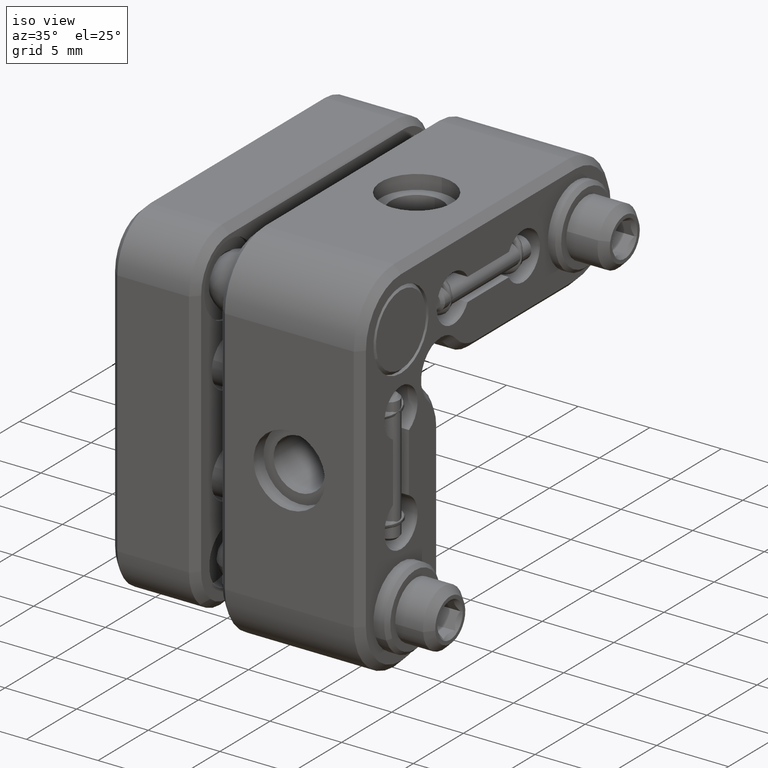
[diagram: clean part render]
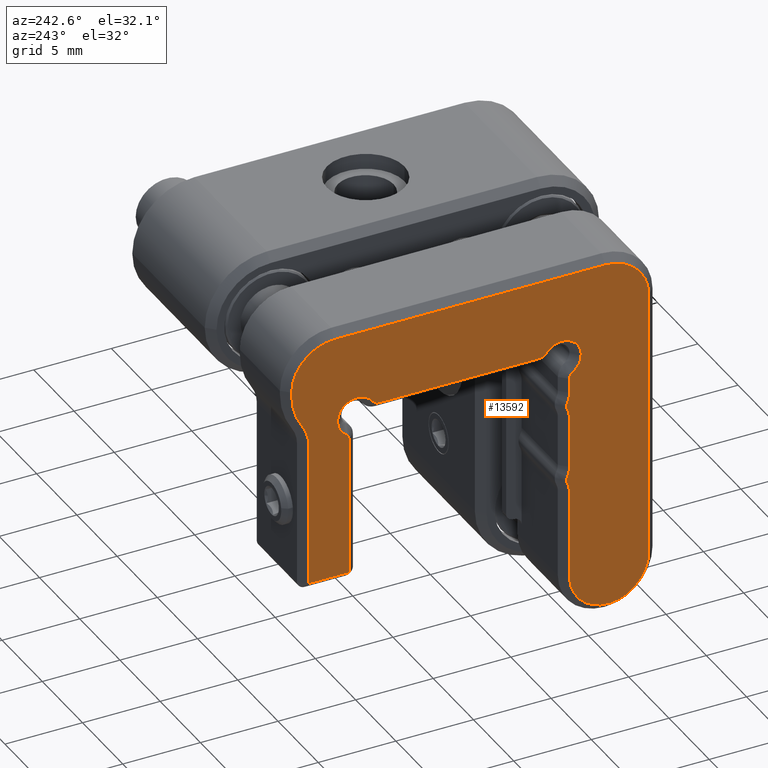
[diagram: tour spotlight — one face highlighted and labeled with its STEP entity id]
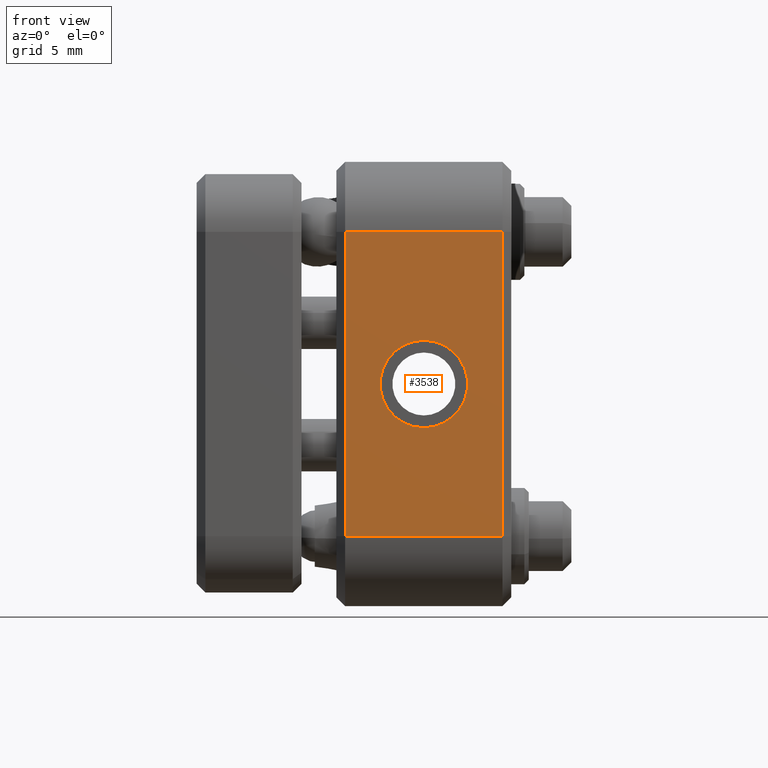
[diagram: tour spotlight — one face highlighted and labeled with its STEP entity id]
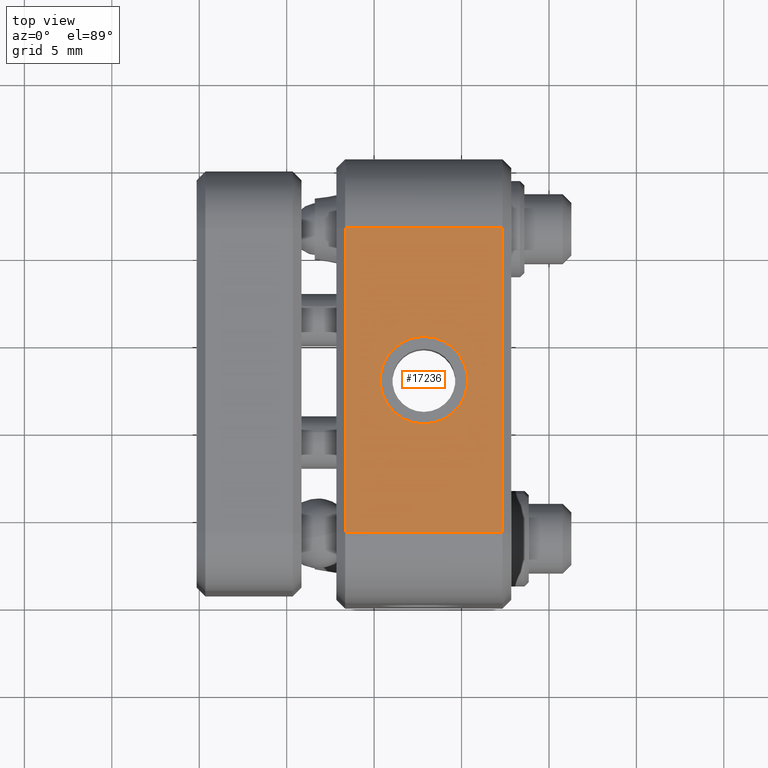
[diagram: tour spotlight — one face highlighted and labeled with its STEP entity id]
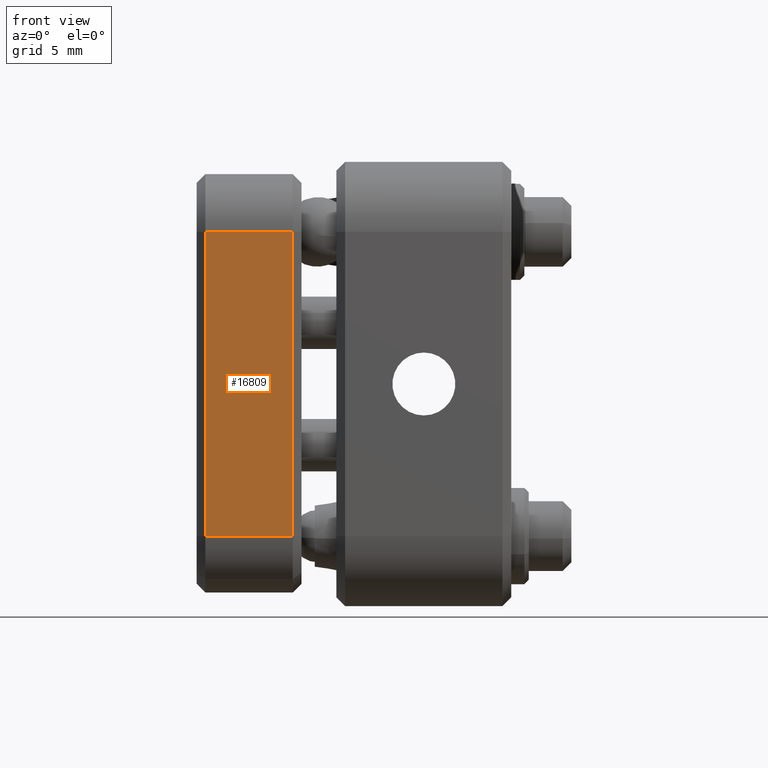
[diagram: tour spotlight — one face highlighted and labeled with its STEP entity id]
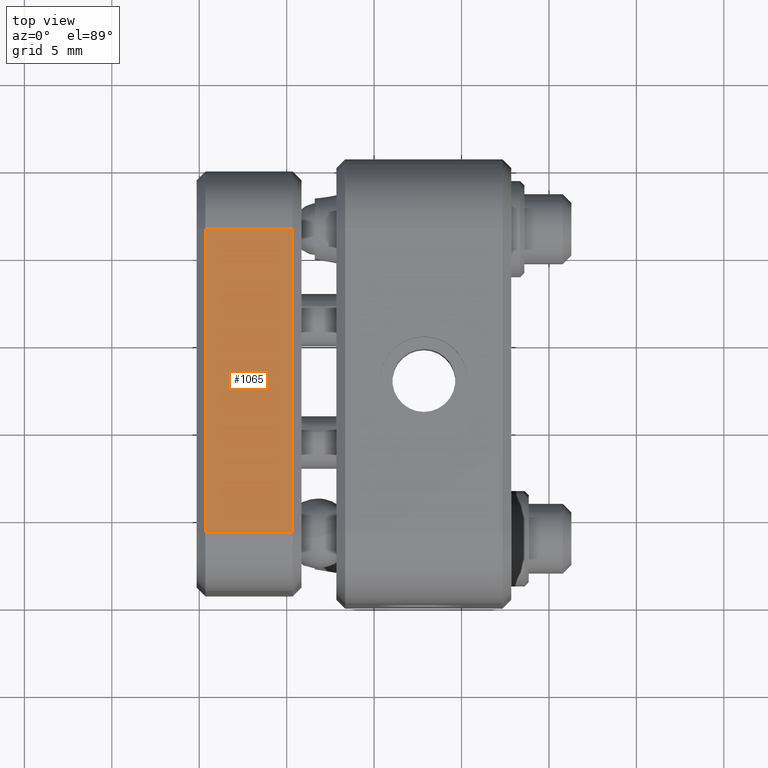
[diagram: tour spotlight — one face highlighted and labeled with its STEP entity id]
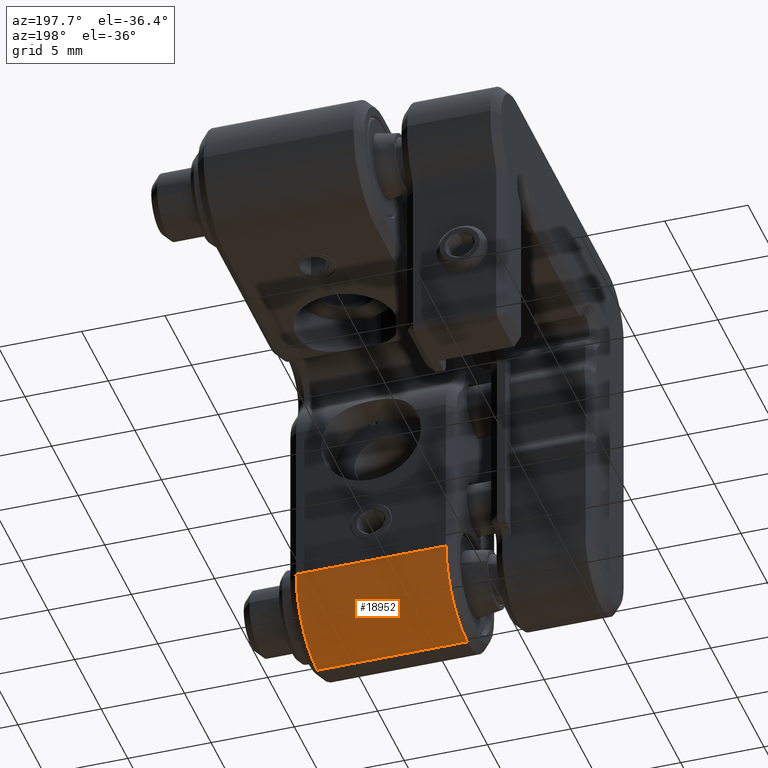
[diagram: tour spotlight — one face highlighted and labeled with its STEP entity id]
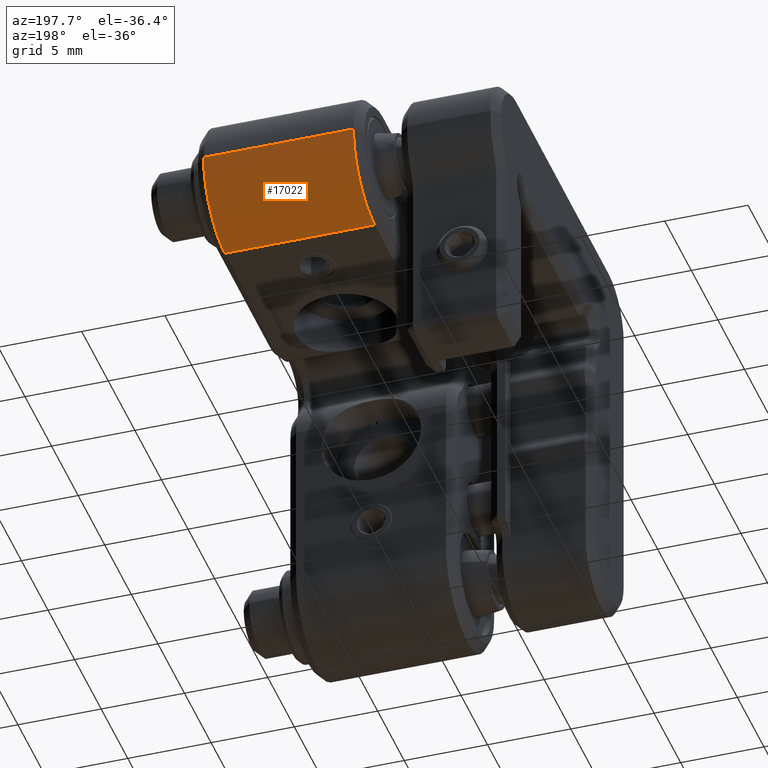
[diagram: tour spotlight — one face highlighted and labeled with its STEP entity id]
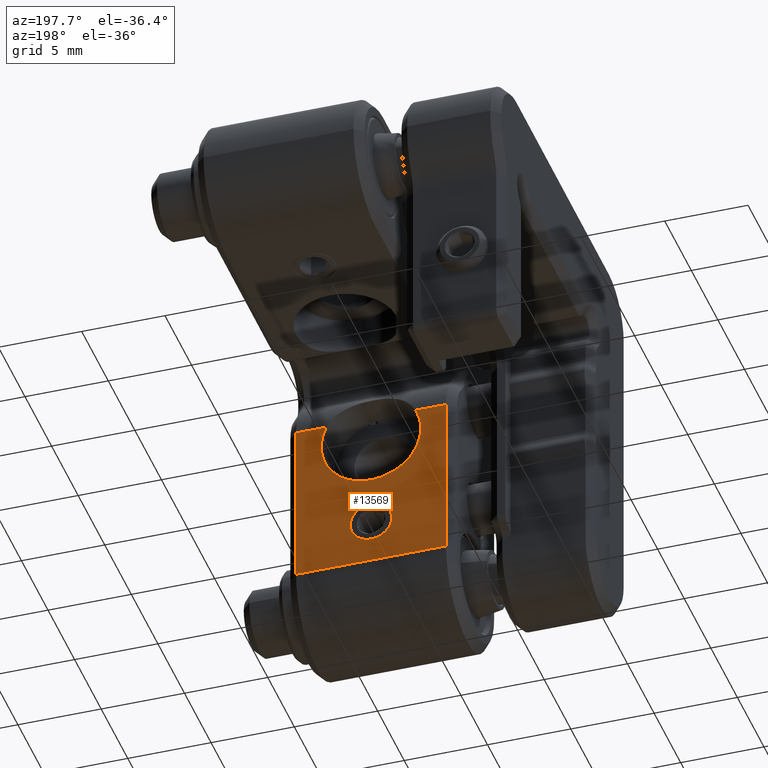
[diagram: tour spotlight — one face highlighted and labeled with its STEP entity id]
A machine part: a face-by-face anatomy tour. The part has 368 B-rep faces; the first image is the clean iso view, then the 8 largest visible faces are spotlighted one at a time (largest first), each with its STEP entity span.

Face 1 — auxiliary view, entity #13592. In plain terms, the highlighted planar face has unit normal (1, 0, 0).
Definition (entity closure, byte-faithful):
#180 = DIRECTION ( 'NONE',  ( 1.000000000000000000, 0.0000000000000000000, 0.0000000000000000000 ) ) ;
#351 = DIRECTION ( 'NONE',  ( 0.0000000000000000000, -2.891205793294678326E-16, 1.000000000000000000 ) ) ;
#529 = VECTOR ( 'NONE', #6184, 1000.000000000000000 ) ;
#653 = LINE ( 'NONE', #8641, #21054 ) ;
#727 = CARTESIAN_POINT ( 'NONE',  ( 9.847411328740415470, 5.800000000000007816, -6.836140661634504845 ) ) ;
#1046 = CARTESIAN_POINT ( 'NONE',  ( 9.847411328740415470, 24.19999999999999929, -2.852119405403254593 ) ) ;
#1091 = VECTOR ( 'NONE', #12409, 1000.000000000000000 ) ;
#1153 = VECTOR ( 'NONE', #22254, 1000.000000000000000 ) ;
#1196 = CARTESIAN_POINT ( 'NONE',  ( 9.847411328740415470, 25.60000000000000853, -6.470129908428365439 ) ) ;
#1208 = CARTESIAN_POINT ( 'NONE',  ( 9.847411328740415470, 21.00000000000000355, -6.836140661634501292 ) ) ;
#1295 = CARTESIAN_POINT ( 'NONE',  ( 9.847411328740415470, 12.70000000000000639, -4.899999999999984368 ) ) ;
#1422 = AXIS2_PLACEMENT_3D ( 'NONE', #1196, #4023, #9121 ) ;
#1427 = VERTEX_POINT ( 'NONE', #14886 ) ;
#1625 = VERTEX_POINT ( 'NONE', #13255 ) ;
#1644 = VECTOR ( 'NONE', #4873, 1000.000000000000000 ) ;
#1671 = DIRECTION ( 'NONE',  ( 0.0000000000000000000, -2.891205793294678326E-16, 1.000000000000000000 ) ) ;
#1681 = VERTEX_POINT ( 'NONE', #20460 ) ;
#1809 = AXIS2_PLACEMENT_3D ( 'NONE', #21715, #9266, #351 ) ;
#1902 = EDGE_LOOP ( 'NONE', ( #12749, #7434, #20106, #4375, #19974, #8867, #7973, #2912, #9295, #15894, #19565, #7230, #7877, #9109, #9439, #10553, #2989, #18371, #14091, #6196, #8314, #9900, #18697, #16679, #17663, #4188, #13378, #14785 ) ) ;
#1936 = EDGE_CURVE ( 'NONE', #21542, #21470, #22886, .T. ) ;
#2209 = VERTEX_POINT ( 'NONE', #9323 ) ;
#2364 = VERTEX_POINT ( 'NONE', #8139 ) ;
#2388 = DIRECTION ( 'NONE',  ( 1.000000000000000000, 0.0000000000000000000, 0.0000000000000000000 ) ) ;
#2446 = VERTEX_POINT ( 'NONE', #8679 ) ;
#2576 = EDGE_CURVE ( 'NONE', #10799, #14043, #20573, .T. ) ;
#2836 = CARTESIAN_POINT ( 'NONE',  ( 9.847411328740415470, 6.299999999999998046, -12.76328516550604242 ) ) ;
#2912 = ORIENTED_EDGE ( 'NONE', *, *, #13220, .F. ) ;
#2983 = VERTEX_POINT ( 'NONE', #10305 ) ;
#2989 = ORIENTED_EDGE ( 'NONE', *, *, #20579, .F. ) ;
#3042 = CARTESIAN_POINT ( 'NONE',  ( 9.847411328740415470, 23.10000000000000142, -15.79999999999999183 ) ) ;
#3185 = DIRECTION ( 'NONE',  ( 0.0000000000000000000, -1.387778780781475652E-14, 1.000000000000000000 ) ) ;
#3266 = EDGE_CURVE ( 'NONE', #19449, #10123, #12544, .T. ) ;
#3393 = CARTESIAN_POINT ( 'NONE',  ( 9.847411328740415470, 4.000000000000007105, 0.1999999999999918510 ) ) ;
#3449 = VECTOR ( 'NONE', #22262, 1000.000000000000000 ) ;
#3509 = CARTESIAN_POINT ( 'NONE',  ( 9.847411328740415470, 7.800000000000007816, -9.506844742922329061 ) ) ;
#3606 = CARTESIAN_POINT ( 'NONE',  ( 9.847411328740415470, 6.000000000000013323, -13.63506495421418485 ) ) ;
#3770 = CARTESIAN_POINT ( 'NONE',  ( 9.847411328740415470, 23.09999999999999432, -6.470129908428365439 ) ) ;
#3908 = DIRECTION ( 'NONE',  ( -1.000000000000000000, -0.0000000000000000000, -0.0000000000000000000 ) ) ;
#3931 = CARTESIAN_POINT ( 'NONE',  ( 9.847411328740415470, 1.200000000000022160, -20.00000000000000355 ) ) ;
#3999 = EDGE_CURVE ( 'NONE', #10123, #1625, #13560, .T. ) ;
#4000 = CIRCLE ( 'NONE', #19605, 3.999999999999988898 ) ;
#4023 = DIRECTION ( 'NONE',  ( -1.000000000000000000, -0.0000000000000000000, -0.0000000000000000000 ) ) ;
#4173 = AXIS2_PLACEMENT_3D ( 'NONE', #5706, #3908, #5404 ) ;
#4188 = ORIENTED_EDGE ( 'NONE', *, *, #5998, .F. ) ;
#4197 = EDGE_CURVE ( 'NONE', #12389, #2364, #13843, .T. ) ;
#4198 = AXIS2_PLACEMENT_3D ( 'NONE', #12966, #5921, #21598 ) ;
#4375 = ORIENTED_EDGE ( 'NONE', *, *, #2576, .F. ) ;
#4573 = CIRCLE ( 'NONE', #14760, 0.4999999999999891753 ) ;
#4578 = DIRECTION ( 'NONE',  ( 0.0000000000000000000, 0.0000000000000000000, 1.000000000000000000 ) ) ;
#4710 = VECTOR ( 'NONE', #12197, 1000.000000000000000 ) ;
#4749 = VERTEX_POINT ( 'NONE', #11320 ) ;
#4811 = EDGE_CURVE ( 'NONE', #2364, #18503, #5303, .T. ) ;
#4865 = CARTESIAN_POINT ( 'NONE',  ( 9.847411328740415470, 6.299999999999997158, -11.30000000000000071 ) ) ;
#4873 = DIRECTION ( 'NONE',  ( 0.0000000000000000000, 1.000000000000000000, 4.205390244792259832E-16 ) ) ;
#5109 = CIRCLE ( 'NONE', #17406, 2.799999999999988276 ) ;
#5205 = CARTESIAN_POINT ( 'NONE',  ( 9.847411328740415470, 1.200000000000018829, -2.599999999999996536 ) ) ;
#5275 = DIRECTION ( 'NONE',  ( 0.0000000000000000000, 0.0000000000000000000, 1.000000000000000000 ) ) ;
#5303 = CIRCLE ( 'NONE', #20083, 1.500000000000009992 ) ;
#5334 = DIRECTION ( 'NONE',  ( 0.0000000000000000000, 2.891205793294678326E-16, -1.000000000000000000 ) ) ;
#5404 = DIRECTION ( 'NONE',  ( 0.0000000000000000000, -5.782411586589318196E-16, 1.000000000000000000 ) ) ;
#5706 = CARTESIAN_POINT ( 'NONE',  ( 9.847411328740415470, 7.800000000000009592, -14.50684474292232906 ) ) ;
#5843 = CARTESIAN_POINT ( 'NONE',  ( 9.847411328740415470, 20.50000000000001776, -6.836140661634501292 ) ) ;
#5921 = DIRECTION ( 'NONE',  ( 1.000000000000000000, 0.0000000000000000000, 0.0000000000000000000 ) ) ;
#5970 = VERTEX_POINT ( 'NONE', #9798 ) ;
#5998 = EDGE_CURVE ( 'NONE', #2209, #2446, #12394, .T. ) ;
#6111 = VERTEX_POINT ( 'NONE', #18899 ) ;
#6178 = AXIS2_PLACEMENT_3D ( 'NONE', #10374, #8445, #3185 ) ;
#6184 = DIRECTION ( 'NONE',  ( 0.0000000000000000000, 2.891205793294678326E-16, -1.000000000000000000 ) ) ;
#6196 = ORIENTED_EDGE ( 'NONE', *, *, #7202, .F. ) ;
#6428 = AXIS2_PLACEMENT_3D ( 'NONE', #1208, #20625, #4578 ) ;
#6541 = CARTESIAN_POINT ( 'NONE',  ( 9.847411328740415470, 3.800000000000010036, -20.22360679774997649 ) ) ;
#6687 = VERTEX_POINT ( 'NONE', #11974 ) ;
#7202 = EDGE_CURVE ( 'NONE', #6687, #10165, #14513, .T. ) ;
#7205 = VERTEX_POINT ( 'NONE', #11892 ) ;
#7209 = AXIS2_PLACEMENT_3D ( 'NONE', #16060, #19550, #9054 ) ;
#7230 = ORIENTED_EDGE ( 'NONE', *, *, #19733, .F. ) ;
#7292 = AXIS2_PLACEMENT_3D ( 'NONE', #6541, #13304, #15316 ) ;
#7434 = ORIENTED_EDGE ( 'NONE', *, *, #20256, .F. ) ;
#7531 = CARTESIAN_POINT ( 'NONE',  ( 9.847411328740415470, 6.450000000000001066, -8.853009901391217795 ) ) ;
#7567 = CIRCLE ( 'NONE', #16337, 1.250000000000010658 ) ;
#7591 = CIRCLE ( 'NONE', #10316, 0.4999999999999900080 ) ;
#7728 = DIRECTION ( 'NONE',  ( 0.0000000000000000000, 0.0000000000000000000, 1.000000000000000000 ) ) ;
#7826 = CARTESIAN_POINT ( 'NONE',  ( 9.847411328740415470, 2.133333333333332416, -22.08699677899977942 ) ) ;
#7877 = ORIENTED_EDGE ( 'NONE', *, *, #18575, .F. ) ;
#7973 = ORIENTED_EDGE ( 'NONE', *, *, #3266, .F. ) ;
#7978 = DIRECTION ( 'NONE',  ( 1.000000000000000000, 0.0000000000000000000, 0.0000000000000000000 ) ) ;
#8042 = CIRCLE ( 'NONE', #1422, 2.500000000000011102 ) ;
#8082 = DIRECTION ( 'NONE',  ( -1.000000000000000000, -0.0000000000000000000, -0.0000000000000000000 ) ) ;
#8129 = EDGE_CURVE ( 'NONE', #7205, #2983, #19624, .T. ) ;
#8133 = CARTESIAN_POINT ( 'NONE',  ( 9.847411328740415470, 8.236140661634513194, -4.899999999999987921 ) ) ;
#8139 = CARTESIAN_POINT ( 'NONE',  ( 9.847411328740415470, 6.299999999999996270, -9.506844742922329061 ) ) ;
#8314 = ORIENTED_EDGE ( 'NONE', *, *, #19658, .F. ) ;
#8445 = DIRECTION ( 'NONE',  ( 1.000000000000000000, 0.0000000000000000000, 0.0000000000000000000 ) ) ;
#8641 = CARTESIAN_POINT ( 'NONE',  ( 9.847411328740415470, 12.70000000000001172, -15.79999999999998828 ) ) ;
#8677 = VERTEX_POINT ( 'NONE', #20665 ) ;
#8679 = CARTESIAN_POINT ( 'NONE',  ( 9.847411328740415470, 6.299999999999996270, -7.763285165506041530 ) ) ;
#8693 = DIRECTION ( 'NONE',  ( 0.0000000000000000000, 1.239088197126295994E-15, 1.000000000000000000 ) ) ;
#8781 = DIRECTION ( 'NONE',  ( 1.000000000000000000, 0.0000000000000000000, 0.0000000000000000000 ) ) ;
#8867 = ORIENTED_EDGE ( 'NONE', *, *, #3999, .F. ) ;
#8986 = DIRECTION ( 'NONE',  ( 0.0000000000000000000, 0.0000000000000000000, 1.000000000000000000 ) ) ;
#9054 = DIRECTION ( 'NONE',  ( 0.0000000000000000000, 6.938893903907367217E-15, 1.000000000000000000 ) ) ;
#9109 = ORIENTED_EDGE ( 'NONE', *, *, #16333, .F. ) ;
#9112 = FACE_OUTER_BOUND ( 'NONE', #1902, .T. ) ;
#9120 = LINE ( 'NONE', #10670, #4710 ) ;
#9121 = DIRECTION ( 'NONE',  ( 0.0000000000000000000, 0.0000000000000000000, 1.000000000000000000 ) ) ;
#9266 = DIRECTION ( 'NONE',  ( 1.000000000000000000, 0.0000000000000000000, 0.0000000000000000000 ) ) ;
#9295 = ORIENTED_EDGE ( 'NONE', *, *, #1936, .F. ) ;
#9323 = CARTESIAN_POINT ( 'NONE',  ( 9.847411328740415470, 6.450000000000000178, -8.417120007037155460 ) ) ;
#9439 = ORIENTED_EDGE ( 'NONE', *, *, #16003, .F. ) ;
#9444 = CARTESIAN_POINT ( 'NONE',  ( 9.847411328740415470, 8.236140661634513194, -4.399999999999997691 ) ) ;
#9759 = DIRECTION ( 'NONE',  ( 0.0000000000000000000, 0.0000000000000000000, 1.000000000000000000 ) ) ;
#9783 = CIRCLE ( 'NONE', #7209, 0.4999999999999900080 ) ;
#9798 = CARTESIAN_POINT ( 'NONE',  ( 9.847411328740415470, 20.50000000000001066, -15.79999999999998472 ) ) ;
#9881 = CIRCLE ( 'NONE', #17018, 1.500000000000009992 ) ;
#9887 = CARTESIAN_POINT ( 'NONE',  ( 9.847411328740415470, 6.299999999999998934, -14.50684474292232906 ) ) ;
#9900 = ORIENTED_EDGE ( 'NONE', *, *, #15102, .F. ) ;
#9980 = CARTESIAN_POINT ( 'NONE',  ( 9.847411328740415470, 23.09999999999999787, -11.29999999999999361 ) ) ;
#10123 = VERTEX_POINT ( 'NONE', #7826 ) ;
#10165 = VERTEX_POINT ( 'NONE', #13065 ) ;
#10305 = CARTESIAN_POINT ( 'NONE',  ( 9.847411328740415470, 7.825814758310378316, -4.685714285714278837 ) ) ;
#10316 = AXIS2_PLACEMENT_3D ( 'NONE', #3606, #8781, #12391 ) ;
#10374 = CARTESIAN_POINT ( 'NONE',  ( 9.847411328740415470, 18.56385933836549995, -4.399999999999994138 ) ) ;
#10437 = VERTEX_POINT ( 'NONE', #8133 ) ;
#10444 = VERTEX_POINT ( 'NONE', #3042 ) ;
#10553 = ORIENTED_EDGE ( 'NONE', *, *, #21501, .F. ) ;
#10670 = CARTESIAN_POINT ( 'NONE',  ( 9.847411328740415470, 6.299999999999997158, -11.30000000000000071 ) ) ;
#10769 = DIRECTION ( 'NONE',  ( 1.000000000000000000, 0.0000000000000000000, 0.0000000000000000000 ) ) ;
#10799 = VERTEX_POINT ( 'NONE', #9887 ) ;
#10987 = EDGE_CURVE ( 'NONE', #8677, #21542, #17934, .T. ) ;
#11277 = CIRCLE ( 'NONE', #6428, 0.4999999999999891753 ) ;
#11320 = CARTESIAN_POINT ( 'NONE',  ( 9.847411328740415470, 23.52307692307692477, -5.078587407264856246 ) ) ;
#11547 = DIRECTION ( 'NONE',  ( 0.0000000000000000000, 0.0000000000000000000, 1.000000000000000000 ) ) ;
#11629 = EDGE_CURVE ( 'NONE', #1427, #8677, #5109, .T. ) ;
#11892 = CARTESIAN_POINT ( 'NONE',  ( 9.847411328740415470, 6.085714285714286298, -6.425814758310368191 ) ) ;
#11974 = CARTESIAN_POINT ( 'NONE',  ( 9.847411328740415470, 18.56385933836549995, -4.899999999999980815 ) ) ;
#12068 = CARTESIAN_POINT ( 'NONE',  ( 9.847411328740415470, 6.800000000000006928, -5.399999999999998579 ) ) ;
#12197 = DIRECTION ( 'NONE',  ( 0.0000000000000000000, -3.375765423455797739E-16, 1.000000000000000000 ) ) ;
#12389 = VERTEX_POINT ( 'NONE', #2836 ) ;
#12391 = DIRECTION ( 'NONE',  ( 0.0000000000000000000, -5.204170427930525413E-15, 1.000000000000000000 ) ) ;
#12394 = CIRCLE ( 'NONE', #16322, 1.500000000000011768 ) ;
#12409 = DIRECTION ( 'NONE',  ( 0.0000000000000000000, -1.000000000000000000, -1.445602896647339163E-16 ) ) ;
#12544 = CIRCLE ( 'NONE', #4198, 2.799999999999990052 ) ;
#12604 = VECTOR ( 'NONE', #5334, 1000.000000000000000 ) ;
#12749 = ORIENTED_EDGE ( 'NONE', *, *, #4197, .F. ) ;
#12966 = CARTESIAN_POINT ( 'NONE',  ( 9.847411328740415470, 4.000000000000012434, -19.99999999999999645 ) ) ;
#13065 = CARTESIAN_POINT ( 'NONE',  ( 9.847411328740415470, 18.97418524168963572, -4.685714285714272620 ) ) ;
#13220 = EDGE_CURVE ( 'NONE', #21470, #19449, #17357, .T. ) ;
#13255 = CARTESIAN_POINT ( 'NONE',  ( 9.847411328740415470, 6.299999999999999822, -20.22360679774997649 ) ) ;
#13280 = CARTESIAN_POINT ( 'NONE',  ( 9.847411328740415470, 20.20000000000000995, -2.852119405403258146 ) ) ;
#13304 = DIRECTION ( 'NONE',  ( 1.000000000000000000, 0.0000000000000000000, 0.0000000000000000000 ) ) ;
#13378 = ORIENTED_EDGE ( 'NONE', *, *, #21979, .F. ) ;
#13480 = CARTESIAN_POINT ( 'NONE',  ( 9.847411328740415470, 6.299999999999998046, -11.30000000000000071 ) ) ;
#13560 = CIRCLE ( 'NONE', #7292, 2.499999999999988454 ) ;
#13592 = ADVANCED_FACE ( 'NONE', ( #9112 ), #16469, .F. ) ;
#13683 = DIRECTION ( 'NONE',  ( -1.000000000000000000, -0.0000000000000000000, -0.0000000000000000000 ) ) ;
#13809 = LINE ( 'NONE', #17462, #20336 ) ;
#13843 = LINE ( 'NONE', #4865, #20108 ) ;
#14013 = DIRECTION ( 'NONE',  ( -1.000000000000000000, -0.0000000000000000000, -0.0000000000000000000 ) ) ;
#14043 = VERTEX_POINT ( 'NONE', #21124 ) ;
#14091 = ORIENTED_EDGE ( 'NONE', *, *, #21886, .F. ) ;
#14175 = CARTESIAN_POINT ( 'NONE',  ( 9.847411328740415470, 4.000000000000008882, -2.599999999999996536 ) ) ;
#14253 = EDGE_CURVE ( 'NONE', #15106, #15168, #11277, .T. ) ;
#14513 = CIRCLE ( 'NONE', #6178, 0.4999999999999891753 ) ;
#14760 = AXIS2_PLACEMENT_3D ( 'NONE', #727, #18453, #11547 ) ;
#14785 = ORIENTED_EDGE ( 'NONE', *, *, #4811, .F. ) ;
#14886 = CARTESIAN_POINT ( 'NONE',  ( 9.847411328740415470, 24.19999999999999929, -2.599999999999992983 ) ) ;
#15102 = EDGE_CURVE ( 'NONE', #2983, #10437, #22140, .T. ) ;
#15106 = VERTEX_POINT ( 'NONE', #19702 ) ;
#15168 = VERTEX_POINT ( 'NONE', #5843 ) ;
#15247 = LINE ( 'NONE', #13480, #1153 ) ;
#15316 = DIRECTION ( 'NONE',  ( 0.0000000000000000000, 1.561251128379133682E-15, 1.000000000000000000 ) ) ;
#15625 = DIRECTION ( 'NONE',  ( 0.0000000000000000000, -3.375765423455797739E-16, 1.000000000000000000 ) ) ;
#15738 = AXIS2_PLACEMENT_3D ( 'NONE', #9444, #2388, #7728 ) ;
#15847 = DIRECTION ( 'NONE',  ( -1.000000000000000000, -0.0000000000000000000, -0.0000000000000000000 ) ) ;
#15894 = ORIENTED_EDGE ( 'NONE', *, *, #10987, .F. ) ;
#16003 = EDGE_CURVE ( 'NONE', #10444, #20074, #18570, .T. ) ;
#16060 = CARTESIAN_POINT ( 'NONE',  ( 9.847411328740415470, 6.000000000000011546, -8.635064954214184851 ) ) ;
#16104 = EDGE_CURVE ( 'NONE', #14043, #6111, #7591, .T. ) ;
#16107 = AXIS2_PLACEMENT_3D ( 'NONE', #14175, #180, #19515 ) ;
#16322 = AXIS2_PLACEMENT_3D ( 'NONE', #18521, #8082, #22169 ) ;
#16333 = EDGE_CURVE ( 'NONE', #20074, #4749, #8042, .T. ) ;
#16337 = AXIS2_PLACEMENT_3D ( 'NONE', #22916, #19319, #8986 ) ;
#16469 = PLANE ( 'NONE',  #1809 ) ;
#16679 = ORIENTED_EDGE ( 'NONE', *, *, #22861, .F. ) ;
#16752 = EDGE_CURVE ( 'NONE', #2446, #1681, #9120, .T. ) ;
#17018 = AXIS2_PLACEMENT_3D ( 'NONE', #20962, #13683, #22541 ) ;
#17357 = LINE ( 'NONE', #21951, #529 ) ;
#17406 = AXIS2_PLACEMENT_3D ( 'NONE', #22938, #10769, #8693 ) ;
#17462 = CARTESIAN_POINT ( 'NONE',  ( 9.847411328740415470, 24.19999999999999929, -11.29999999999999361 ) ) ;
#17663 = ORIENTED_EDGE ( 'NONE', *, *, #16752, .F. ) ;
#17668 = CARTESIAN_POINT ( 'NONE',  ( 9.847411328740415470, 20.50000000000001776, -11.29999999999999361 ) ) ;
#17934 = LINE ( 'NONE', #19372, #1091 ) ;
#18371 = ORIENTED_EDGE ( 'NONE', *, *, #14253, .F. ) ;
#18453 = DIRECTION ( 'NONE',  ( 1.000000000000000000, 0.0000000000000000000, 0.0000000000000000000 ) ) ;
#18503 = VERTEX_POINT ( 'NONE', #7531 ) ;
#18521 = CARTESIAN_POINT ( 'NONE',  ( 9.847411328740415470, 7.800000000000007816, -7.763285165506041530 ) ) ;
#18570 = LINE ( 'NONE', #9980, #3449 ) ;
#18575 = EDGE_CURVE ( 'NONE', #4749, #21382, #4000, .T. ) ;
#18697 = ORIENTED_EDGE ( 'NONE', *, *, #8129, .F. ) ;
#18899 = CARTESIAN_POINT ( 'NONE',  ( 9.847411328740415470, 6.450000000000002842, -13.41712000703715368 ) ) ;
#18986 = AXIS2_PLACEMENT_3D ( 'NONE', #12068, #14013, #5275 ) ;
#19319 = DIRECTION ( 'NONE',  ( -1.000000000000000000, -0.0000000000000000000, -0.0000000000000000000 ) ) ;
#19372 = CARTESIAN_POINT ( 'NONE',  ( 9.847411328740415470, 12.70000000000000817, 0.1999999999999918510 ) ) ;
#19449 = VERTEX_POINT ( 'NONE', #3931 ) ;
#19515 = DIRECTION ( 'NONE',  ( 0.0000000000000000000, -3.097720492815738012E-16, 1.000000000000000000 ) ) ;
#19550 = DIRECTION ( 'NONE',  ( 1.000000000000000000, 0.0000000000000000000, 0.0000000000000000000 ) ) ;
#19565 = ORIENTED_EDGE ( 'NONE', *, *, #11629, .F. ) ;
#19605 = AXIS2_PLACEMENT_3D ( 'NONE', #13280, #7978, #9759 ) ;
#19624 = CIRCLE ( 'NONE', #18986, 1.250000000000010658 ) ;
#19658 = EDGE_CURVE ( 'NONE', #10437, #6687, #22321, .T. ) ;
#19702 = CARTESIAN_POINT ( 'NONE',  ( 9.847411328740415470, 20.71428571428572596, -6.425814758310364638 ) ) ;
#19733 = EDGE_CURVE ( 'NONE', #21382, #1427, #13809, .T. ) ;
#19974 = ORIENTED_EDGE ( 'NONE', *, *, #22253, .F. ) ;
#20074 = VERTEX_POINT ( 'NONE', #3770 ) ;
#20083 = AXIS2_PLACEMENT_3D ( 'NONE', #3509, #15847, #21128 ) ;
#20106 = ORIENTED_EDGE ( 'NONE', *, *, #16104, .F. ) ;
#20108 = VECTOR ( 'NONE', #15625, 1000.000000000000000 ) ;
#20256 = EDGE_CURVE ( 'NONE', #6111, #12389, #9881, .T. ) ;
#20336 = VECTOR ( 'NONE', #1671, 1000.000000000000000 ) ;
#20460 = CARTESIAN_POINT ( 'NONE',  ( 9.847411328740415470, 6.299999999999996270, -6.836140661634504845 ) ) ;
#20573 = CIRCLE ( 'NONE', #4173, 1.500000000000009992 ) ;
#20579 = EDGE_CURVE ( 'NONE', #15168, #5970, #21417, .T. ) ;
#20616 = DIRECTION ( 'NONE',  ( 0.0000000000000000000, 1.000000000000000000, 3.785316622200056114E-16 ) ) ;
#20625 = DIRECTION ( 'NONE',  ( 1.000000000000000000, 0.0000000000000000000, 0.0000000000000000000 ) ) ;
#20665 = CARTESIAN_POINT ( 'NONE',  ( 9.847411328740415470, 21.40000000000000568, 0.1999999999999935718 ) ) ;
#20962 = CARTESIAN_POINT ( 'NONE',  ( 9.847411328740415470, 7.800000000000008704, -12.76328516550604242 ) ) ;
#21054 = VECTOR ( 'NONE', #20616, 1000.000000000000000 ) ;
#21124 = CARTESIAN_POINT ( 'NONE',  ( 9.847411328740415470, 6.450000000000002842, -13.85300990139121780 ) ) ;
#21128 = DIRECTION ( 'NONE',  ( 0.0000000000000000000, -5.782411586589318196E-16, 1.000000000000000000 ) ) ;
#21382 = VERTEX_POINT ( 'NONE', #1046 ) ;
#21417 = LINE ( 'NONE', #17668, #12604 ) ;
#21470 = VERTEX_POINT ( 'NONE', #5205 ) ;
#21501 = EDGE_CURVE ( 'NONE', #5970, #10444, #653, .T. ) ;
#21542 = VERTEX_POINT ( 'NONE', #3393 ) ;
#21598 = DIRECTION ( 'NONE',  ( 0.0000000000000000000, 1.548860246407869056E-15, 1.000000000000000000 ) ) ;
#21715 = CARTESIAN_POINT ( 'NONE',  ( 9.847411328740415470, 12.70000000000000995, -11.29999999999999716 ) ) ;
#21886 = EDGE_CURVE ( 'NONE', #10165, #15106, #7567, .T. ) ;
#21951 = CARTESIAN_POINT ( 'NONE',  ( 9.847411328740415470, 1.200000000000020606, -11.30000000000000071 ) ) ;
#21979 = EDGE_CURVE ( 'NONE', #18503, #2209, #9783, .T. ) ;
#22140 = CIRCLE ( 'NONE', #15738, 0.4999999999999891753 ) ;
#22169 = DIRECTION ( 'NONE',  ( 0.0000000000000000000, -5.782411586589311293E-16, 1.000000000000000000 ) ) ;
#22253 = EDGE_CURVE ( 'NONE', #1625, #10799, #15247, .T. ) ;
#22254 = DIRECTION ( 'NONE',  ( 0.0000000000000000000, -3.375765423455797739E-16, 1.000000000000000000 ) ) ;
#22262 = DIRECTION ( 'NONE',  ( 0.0000000000000000000, -2.891205793294678326E-16, 1.000000000000000000 ) ) ;
#22321 = LINE ( 'NONE', #1295, #1644 ) ;
#22541 = DIRECTION ( 'NONE',  ( 0.0000000000000000000, -5.782411586589318196E-16, 1.000000000000000000 ) ) ;
#22861 = EDGE_CURVE ( 'NONE', #1681, #7205, #4573, .T. ) ;
#22886 = CIRCLE ( 'NONE', #16107, 2.799999999999990052 ) ;
#22916 = CARTESIAN_POINT ( 'NONE',  ( 9.847411328740415470, 20.00000000000000711, -5.399999999999995026 ) ) ;
#22938 = CARTESIAN_POINT ( 'NONE',  ( 9.847411328740415470, 21.40000000000000924, -2.599999999999994760 ) ) ;

Face 2 — front view, entity #3538. In plain terms, the highlighted planar face has unit normal (-0, 1, 0).
Definition (entity closure, byte-faithful):
#73 = FACE_BOUND ( 'NONE', #10498, .T. ) ;
#403 = VECTOR ( 'NONE', #5728, 1000.000000000000000 ) ;
#904 = CIRCLE ( 'NONE', #16210, 2.500000000000000444 ) ;
#906 = VECTOR ( 'NONE', #20026, 1000.000000000000000 ) ;
#1096 = ORIENTED_EDGE ( 'NONE', *, *, #11330, .T. ) ;
#1202 = LINE ( 'NONE', #4167, #13067 ) ;
#1315 = CARTESIAN_POINT ( 'NONE',  ( 22.84426557823278259, 1.734723475976807094E-15, -11.29999999999999183 ) ) ;
#3023 = CARTESIAN_POINT ( 'NONE',  ( 27.84426557823278969, 6.938893903907228378E-15, -19.99999999999998934 ) ) ;
#3336 = DIRECTION ( 'NONE',  ( -1.378096284421531633E-22, 1.000000000000000000, -2.914335439641035919E-16 ) ) ;
#3538 = ADVANCED_FACE ( 'NONE', ( #73, #5410 ), #20769, .F. ) ;
#4086 = CARTESIAN_POINT ( 'NONE',  ( 22.84426557823278259, 1.734723475976807094E-15, -11.29999999999999183 ) ) ;
#4167 = CARTESIAN_POINT ( 'NONE',  ( 27.34426557823277193, 3.469446951953614189E-15, -2.599999999999989431 ) ) ;
#4221 = CARTESIAN_POINT ( 'NONE',  ( 22.84426557823278259, 1.006139616066547326E-15, -13.79999999999999361 ) ) ;
#4742 = CARTESIAN_POINT ( 'NONE',  ( 27.84426557823278969, 5.204170427930421283E-15, -23.99999999999999289 ) ) ;
#5410 = FACE_OUTER_BOUND ( 'NONE', #10106, .T. ) ;
#5728 = DIRECTION ( 'NONE',  ( -1.000000000000000000, -8.833440731914468542E-23, -5.569080924222307690E-23 ) ) ;
#5895 = DIRECTION ( 'NONE',  ( -1.378096284421531633E-22, 1.000000000000000000, -2.914335439641035919E-16 ) ) ;
#6331 = AXIS2_PLACEMENT_3D ( 'NONE', #4086, #5895, #7556 ) ;
#6411 = VERTEX_POINT ( 'NONE', #21471 ) ;
#7556 = DIRECTION ( 'NONE',  ( 0.0000000000000000000, 2.914335439641036412E-16, 1.000000000000000000 ) ) ;
#7687 = CARTESIAN_POINT ( 'NONE',  ( 18.34426557823279325, 5.204170427930421283E-15, -23.99999999999999289 ) ) ;
#8879 = CARTESIAN_POINT ( 'NONE',  ( 18.34426557823279325, 3.469446951953614189E-15, -2.599999999999989431 ) ) ;
#9580 = CARTESIAN_POINT ( 'NONE',  ( 22.84426557823278259, 2.463307335887066074E-15, -8.799999999999991829 ) ) ;
#9982 = CIRCLE ( 'NONE', #6331, 2.500000000000000444 ) ;
#10106 = EDGE_LOOP ( 'NONE', ( #19009, #1096, #11096, #22637 ) ) ;
#10388 = LINE ( 'NONE', #16230, #403 ) ;
#10498 = EDGE_LOOP ( 'NONE', ( #17659, #18400 ) ) ;
#11096 = ORIENTED_EDGE ( 'NONE', *, *, #21217, .T. ) ;
#11330 = EDGE_CURVE ( 'NONE', #6411, #17585, #1202, .T. ) ;
#11961 = EDGE_CURVE ( 'NONE', #14625, #6411, #22168, .T. ) ;
#13067 = VECTOR ( 'NONE', #21924, 1000.000000000000000 ) ;
#13426 = CARTESIAN_POINT ( 'NONE',  ( 18.34426557823279325, 6.938893903907228378E-15, -19.99999999999998934 ) ) ;
#14526 = AXIS2_PLACEMENT_3D ( 'NONE', #4742, #20627, #17326 ) ;
#14625 = VERTEX_POINT ( 'NONE', #13426 ) ;
#15798 = VERTEX_POINT ( 'NONE', #9580 ) ;
#16210 = AXIS2_PLACEMENT_3D ( 'NONE', #1315, #3336, #22757 ) ;
#16230 = CARTESIAN_POINT ( 'NONE',  ( 27.84426557823278969, 3.469446951953614189E-15, -2.599999999999989431 ) ) ;
#16453 = EDGE_CURVE ( 'NONE', #18254, #15798, #9982, .T. ) ;
#16873 = DIRECTION ( 'NONE',  ( 1.000000000000000000, 8.833440731914468542E-23, 5.569080924222307690E-23 ) ) ;
#17326 = DIRECTION ( 'NONE',  ( -1.025309737829606120E-23, -6.720346064414088947E-17, 1.000000000000000000 ) ) ;
#17585 = VERTEX_POINT ( 'NONE', #20110 ) ;
#17659 = ORIENTED_EDGE ( 'NONE', *, *, #16453, .T. ) ;
#18033 = VECTOR ( 'NONE', #16873, 1000.000000000000000 ) ;
#18254 = VERTEX_POINT ( 'NONE', #4221 ) ;
#18263 = EDGE_CURVE ( 'NONE', #19223, #14625, #22464, .T. ) ;
#18400 = ORIENTED_EDGE ( 'NONE', *, *, #21831, .T. ) ;
#19009 = ORIENTED_EDGE ( 'NONE', *, *, #11961, .T. ) ;
#19223 = VERTEX_POINT ( 'NONE', #8879 ) ;
#20026 = DIRECTION ( 'NONE',  ( 1.025309737829606120E-23, 6.720346064414088947E-17, -1.000000000000000000 ) ) ;
#20110 = CARTESIAN_POINT ( 'NONE',  ( 27.34426557823277193, 3.469446951953614189E-15, -2.599999999999989431 ) ) ;
#20627 = DIRECTION ( 'NONE',  ( -1.378096284421531633E-22, 1.000000000000000000, 6.720346064414088947E-17 ) ) ;
#20769 = PLANE ( 'NONE',  #14526 ) ;
#21217 = EDGE_CURVE ( 'NONE', #17585, #19223, #10388, .T. ) ;
#21471 = CARTESIAN_POINT ( 'NONE',  ( 27.34426557823277193, 6.938893903907228378E-15, -19.99999999999998934 ) ) ;
#21831 = EDGE_CURVE ( 'NONE', #15798, #18254, #904, .T. ) ;
#21924 = DIRECTION ( 'NONE',  ( -1.025309737829606120E-23, -6.720346064414088947E-17, 1.000000000000000000 ) ) ;
#22168 = LINE ( 'NONE', #3023, #18033 ) ;
#22464 = LINE ( 'NONE', #7687, #906 ) ;
#22637 = ORIENTED_EDGE ( 'NONE', *, *, #18263, .T. ) ;
#22757 = DIRECTION ( 'NONE',  ( 0.0000000000000000000, 2.914335439641036412E-16, 1.000000000000000000 ) ) ;

Face 3 — top view, entity #17236. In plain terms, the highlighted planar face has unit normal (0, -0, -1).
Definition (entity closure, byte-faithful):
#219 = LINE ( 'NONE', #11714, #2166 ) ;
#528 = VERTEX_POINT ( 'NONE', #8388 ) ;
#926 = ORIENTED_EDGE ( 'NONE', *, *, #1568, .T. ) ;
#995 = EDGE_CURVE ( 'NONE', #7320, #528, #18538, .T. ) ;
#1494 = AXIS2_PLACEMENT_3D ( 'NONE', #11614, #2519, #4862 ) ;
#1568 = EDGE_CURVE ( 'NONE', #6319, #3407, #219, .T. ) ;
#1695 = CARTESIAN_POINT ( 'NONE',  ( 27.84426557823278969, 21.40000000000000924, 1.400000000000010569 ) ) ;
#1774 = LINE ( 'NONE', #1695, #2057 ) ;
#1971 = DIRECTION ( 'NONE',  ( 1.000000000000000000, 8.833440731914468542E-23, 5.569080924222307690E-23 ) ) ;
#2057 = VECTOR ( 'NONE', #14368, 1000.000000000000000 ) ;
#2166 = VECTOR ( 'NONE', #13332, 1000.000000000000000 ) ;
#2274 = CARTESIAN_POINT ( 'NONE',  ( 18.34426557823279325, 21.40000000000000924, 1.400000000000010569 ) ) ;
#2519 = DIRECTION ( 'NONE',  ( -1.025309737829608030E-23, 6.938893903907227145E-17, 1.000000000000000000 ) ) ;
#3407 = VERTEX_POINT ( 'NONE', #20144 ) ;
#4010 = CARTESIAN_POINT ( 'NONE',  ( 27.84426557823278969, 4.000000000000007105, 1.400000000000010569 ) ) ;
#4669 = CARTESIAN_POINT ( 'NONE',  ( 22.84426557823278259, 12.70000000000000995, 1.400000000000010569 ) ) ;
#4862 = DIRECTION ( 'NONE',  ( 0.0000000000000000000, -1.000000000000000000, 8.673617379884034239E-17 ) ) ;
#4998 = VERTEX_POINT ( 'NONE', #7359 ) ;
#6028 = EDGE_LOOP ( 'NONE', ( #9051, #10589 ) ) ;
#6265 = DIRECTION ( 'NONE',  ( 1.025309737829608177E-23, -6.938893903907227145E-17, -1.000000000000000000 ) ) ;
#6319 = VERTEX_POINT ( 'NONE', #2274 ) ;
#6934 = AXIS2_PLACEMENT_3D ( 'NONE', #18471, #6265, #22260 ) ;
#7320 = VERTEX_POINT ( 'NONE', #20794 ) ;
#7359 = CARTESIAN_POINT ( 'NONE',  ( 27.34426557823277193, 4.000000000000007105, 1.400000000000010569 ) ) ;
#8261 = PLANE ( 'NONE',  #6934 ) ;
#8388 = CARTESIAN_POINT ( 'NONE',  ( 22.84426557823278259, 10.20000000000000995, 1.400000000000010791 ) ) ;
#8949 = DIRECTION ( 'NONE',  ( -1.378096284421531633E-22, 1.000000000000000000, -6.938893903907227145E-17 ) ) ;
#9008 = CARTESIAN_POINT ( 'NONE',  ( 27.34426557823277193, 21.40000000000000924, 1.400000000000010569 ) ) ;
#9051 = ORIENTED_EDGE ( 'NONE', *, *, #13812, .F. ) ;
#9091 = CARTESIAN_POINT ( 'NONE',  ( 27.34426557823277193, 21.40000000000000924, 1.400000000000010569 ) ) ;
#9944 = FACE_BOUND ( 'NONE', #6028, .T. ) ;
#9999 = DIRECTION ( 'NONE',  ( -1.025309737829608030E-23, 6.938893903907227145E-17, 1.000000000000000000 ) ) ;
#10296 = LINE ( 'NONE', #9091, #20141 ) ;
#10589 = ORIENTED_EDGE ( 'NONE', *, *, #995, .F. ) ;
#11035 = LINE ( 'NONE', #4010, #13477 ) ;
#11046 = FACE_OUTER_BOUND ( 'NONE', #21713, .T. ) ;
#11614 = CARTESIAN_POINT ( 'NONE',  ( 22.84426557823278259, 12.70000000000000995, 1.400000000000010569 ) ) ;
#11701 = VERTEX_POINT ( 'NONE', #9008 ) ;
#11714 = CARTESIAN_POINT ( 'NONE',  ( 18.34426557823279325, 25.40000000000001279, 1.400000000000008793 ) ) ;
#12534 = ORIENTED_EDGE ( 'NONE', *, *, #18962, .T. ) ;
#13332 = DIRECTION ( 'NONE',  ( 1.378096284421531633E-22, -1.000000000000000000, 6.938893903907227145E-17 ) ) ;
#13477 = VECTOR ( 'NONE', #1971, 1000.000000000000000 ) ;
#13812 = EDGE_CURVE ( 'NONE', #528, #7320, #14055, .T. ) ;
#13881 = AXIS2_PLACEMENT_3D ( 'NONE', #4669, #9999, #20318 ) ;
#14055 = CIRCLE ( 'NONE', #1494, 2.500000000000000444 ) ;
#14368 = DIRECTION ( 'NONE',  ( -1.000000000000000000, -8.833440731914468542E-23, -5.569080924222307690E-23 ) ) ;
#15232 = ORIENTED_EDGE ( 'NONE', *, *, #15734, .T. ) ;
#15734 = EDGE_CURVE ( 'NONE', #11701, #6319, #1774, .T. ) ;
#17236 = ADVANCED_FACE ( 'NONE', ( #9944, #11046 ), #8261, .F. ) ;
#18471 = CARTESIAN_POINT ( 'NONE',  ( 27.84426557823278969, 25.40000000000001279, 1.400000000000008793 ) ) ;
#18538 = CIRCLE ( 'NONE', #13881, 2.500000000000000444 ) ;
#18962 = EDGE_CURVE ( 'NONE', #4998, #11701, #10296, .T. ) ;
#19927 = EDGE_CURVE ( 'NONE', #3407, #4998, #11035, .T. ) ;
#20141 = VECTOR ( 'NONE', #8949, 1000.000000000000000 ) ;
#20144 = CARTESIAN_POINT ( 'NONE',  ( 18.34426557823279325, 4.000000000000007105, 1.400000000000010569 ) ) ;
#20318 = DIRECTION ( 'NONE',  ( 0.0000000000000000000, -1.000000000000000000, 8.673617379884034239E-17 ) ) ;
#20794 = CARTESIAN_POINT ( 'NONE',  ( 22.84426557823278259, 15.20000000000000995, 1.400000000000010347 ) ) ;
#20918 = ORIENTED_EDGE ( 'NONE', *, *, #19927, .T. ) ;
#21713 = EDGE_LOOP ( 'NONE', ( #20918, #12534, #15232, #926 ) ) ;
#22260 = DIRECTION ( 'NONE',  ( -1.378096284421531633E-22, 1.000000000000000000, -6.938893903907227145E-17 ) ) ;

Face 4 — front view, entity #16809. In plain terms, the highlighted planar face has unit normal (0, 1, 0).
Definition (entity closure, byte-faithful):
#156 = CARTESIAN_POINT ( 'NONE',  ( 15.34741132874041192, 0.7000000000000113909, -20.00000000000000355 ) ) ;
#484 = VECTOR ( 'NONE', #8925, 1000.000000000000000 ) ;
#550 = EDGE_CURVE ( 'NONE', #11328, #5020, #14518, .T. ) ;
#1173 = CARTESIAN_POINT ( 'NONE',  ( 15.34741132874041192, 0.7000000000000113909, -20.00000000000000355 ) ) ;
#1468 = ORIENTED_EDGE ( 'NONE', *, *, #550, .F. ) ;
#2902 = ORIENTED_EDGE ( 'NONE', *, *, #6622, .F. ) ;
#3219 = LINE ( 'NONE', #18791, #3496 ) ;
#3496 = VECTOR ( 'NONE', #13527, 1000.000000000000000 ) ;
#3872 = FACE_OUTER_BOUND ( 'NONE', #11875, .T. ) ;
#4296 = CARTESIAN_POINT ( 'NONE',  ( 15.84741132874041547, 0.7000000000000079492, -2.599999999999996536 ) ) ;
#5020 = VERTEX_POINT ( 'NONE', #156 ) ;
#5080 = DIRECTION ( 'NONE',  ( 0.0000000000000000000, 1.000000000000000000, 2.891205793294678326E-16 ) ) ;
#5746 = CARTESIAN_POINT ( 'NONE',  ( 10.34741132874042258, 0.7000000000000113909, -20.00000000000000355 ) ) ;
#6458 = EDGE_CURVE ( 'NONE', #19316, #11328, #19200, .T. ) ;
#6622 = EDGE_CURVE ( 'NONE', #5020, #9650, #3219, .T. ) ;
#6850 = CARTESIAN_POINT ( 'NONE',  ( 10.34741132874042258, 0.7000000000000079492, -2.599999999999996536 ) ) ;
#7135 = CARTESIAN_POINT ( 'NONE',  ( 10.34741132874042258, 0.7000000000000130562, -23.30000000000000071 ) ) ;
#7781 = ORIENTED_EDGE ( 'NONE', *, *, #9105, .F. ) ;
#8925 = DIRECTION ( 'NONE',  ( 0.0000000000000000000, -2.891205793294678326E-16, 1.000000000000000000 ) ) ;
#9105 = EDGE_CURVE ( 'NONE', #9650, #19316, #14585, .T. ) ;
#9650 = VERTEX_POINT ( 'NONE', #5746 ) ;
#11328 = VERTEX_POINT ( 'NONE', #18359 ) ;
#11875 = EDGE_LOOP ( 'NONE', ( #19241, #7781, #2902, #1468 ) ) ;
#13527 = DIRECTION ( 'NONE',  ( -1.000000000000000000, 0.0000000000000000000, 0.0000000000000000000 ) ) ;
#13907 = DIRECTION ( 'NONE',  ( 0.0000000000000000000, 2.891205793294678326E-16, -1.000000000000000000 ) ) ;
#14518 = LINE ( 'NONE', #1173, #18577 ) ;
#14585 = LINE ( 'NONE', #7135, #484 ) ;
#15912 = PLANE ( 'NONE',  #20000 ) ;
#16447 = DIRECTION ( 'NONE',  ( 1.000000000000000000, -0.0000000000000000000, -0.0000000000000000000 ) ) ;
#16809 = ADVANCED_FACE ( 'NONE', ( #3872 ), #15912, .F. ) ;
#18359 = CARTESIAN_POINT ( 'NONE',  ( 15.34741132874041192, 0.7000000000000079492, -2.599999999999996536 ) ) ;
#18577 = VECTOR ( 'NONE', #18885, 1000.000000000000000 ) ;
#18791 = CARTESIAN_POINT ( 'NONE',  ( 15.84741132874041547, 0.7000000000000113909, -20.00000000000000355 ) ) ;
#18885 = DIRECTION ( 'NONE',  ( 0.0000000000000000000, 2.891205793294678326E-16, -1.000000000000000000 ) ) ;
#19200 = LINE ( 'NONE', #4296, #20556 ) ;
#19241 = ORIENTED_EDGE ( 'NONE', *, *, #6458, .F. ) ;
#19257 = CARTESIAN_POINT ( 'NONE',  ( 15.84741132874041547, 0.7000000000000130562, -23.30000000000000071 ) ) ;
#19316 = VERTEX_POINT ( 'NONE', #6850 ) ;
#20000 = AXIS2_PLACEMENT_3D ( 'NONE', #19257, #5080, #13907 ) ;
#20556 = VECTOR ( 'NONE', #16447, 1000.000000000000000 ) ;

Face 5 — top view, entity #1065. In plain terms, the highlighted planar face has unit normal (0, 0, -1).
Definition (entity closure, byte-faithful):
#888 = LINE ( 'NONE', #2666, #22447 ) ;
#989 = DIRECTION ( 'NONE',  ( 0.0000000000000000000, 1.445602896647339163E-16, -1.000000000000000000 ) ) ;
#1065 = ADVANCED_FACE ( 'NONE', ( #12234 ), #15124, .F. ) ;
#1431 = VECTOR ( 'NONE', #20380, 1000.000000000000000 ) ;
#1882 = VERTEX_POINT ( 'NONE', #5753 ) ;
#2034 = ORIENTED_EDGE ( 'NONE', *, *, #7924, .F. ) ;
#2154 = CARTESIAN_POINT ( 'NONE',  ( 10.34741132874042258, 21.40000000000000568, 0.7000000000000027311 ) ) ;
#2666 = CARTESIAN_POINT ( 'NONE',  ( 10.34741132874042258, 24.70000000000000639, 0.7000000000000043965 ) ) ;
#2690 = DIRECTION ( 'NONE',  ( 1.000000000000000000, -0.0000000000000000000, -0.0000000000000000000 ) ) ;
#2973 = VECTOR ( 'NONE', #2690, 1000.000000000000000 ) ;
#5260 = ORIENTED_EDGE ( 'NONE', *, *, #15242, .F. ) ;
#5725 = VERTEX_POINT ( 'NONE', #2154 ) ;
#5753 = CARTESIAN_POINT ( 'NONE',  ( 15.34741132874041192, 4.000000000000007105, 0.7000000000000027311 ) ) ;
#7686 = LINE ( 'NONE', #17001, #2973 ) ;
#7924 = EDGE_CURVE ( 'NONE', #14282, #5725, #888, .T. ) ;
#9670 = ORIENTED_EDGE ( 'NONE', *, *, #21355, .F. ) ;
#10711 = EDGE_LOOP ( 'NONE', ( #14346, #2034, #5260, #9670 ) ) ;
#12234 = FACE_OUTER_BOUND ( 'NONE', #10711, .T. ) ;
#12288 = VECTOR ( 'NONE', #17085, 1000.000000000000000 ) ;
#13347 = DIRECTION ( 'NONE',  ( 0.0000000000000000000, -1.000000000000000000, -1.445602896647339163E-16 ) ) ;
#13400 = CARTESIAN_POINT ( 'NONE',  ( 15.34741132874041192, 4.000000000000007105, 0.7000000000000027311 ) ) ;
#14282 = VERTEX_POINT ( 'NONE', #20766 ) ;
#14346 = ORIENTED_EDGE ( 'NONE', *, *, #17214, .F. ) ;
#15038 = AXIS2_PLACEMENT_3D ( 'NONE', #18711, #989, #13347 ) ;
#15082 = DIRECTION ( 'NONE',  ( 0.0000000000000000000, 1.000000000000000000, 1.445602896647339163E-16 ) ) ;
#15124 = PLANE ( 'NONE',  #15038 ) ;
#15242 = EDGE_CURVE ( 'NONE', #1882, #14282, #20992, .T. ) ;
#17001 = CARTESIAN_POINT ( 'NONE',  ( 15.84741132874041547, 21.40000000000000568, 0.7000000000000027311 ) ) ;
#17085 = DIRECTION ( 'NONE',  ( 0.0000000000000000000, -1.000000000000000000, -1.445602896647339163E-16 ) ) ;
#17214 = EDGE_CURVE ( 'NONE', #5725, #20178, #7686, .T. ) ;
#18316 = LINE ( 'NONE', #13400, #12288 ) ;
#18437 = CARTESIAN_POINT ( 'NONE',  ( 15.34741132874041192, 21.40000000000000568, 0.7000000000000027311 ) ) ;
#18711 = CARTESIAN_POINT ( 'NONE',  ( 15.84741132874041547, 24.70000000000000639, 0.7000000000000043965 ) ) ;
#20133 = CARTESIAN_POINT ( 'NONE',  ( 15.84741132874041547, 4.000000000000007105, 0.7000000000000027311 ) ) ;
#20178 = VERTEX_POINT ( 'NONE', #18437 ) ;
#20380 = DIRECTION ( 'NONE',  ( -1.000000000000000000, 0.0000000000000000000, 0.0000000000000000000 ) ) ;
#20766 = CARTESIAN_POINT ( 'NONE',  ( 10.34741132874042258, 4.000000000000007105, 0.7000000000000027311 ) ) ;
#20992 = LINE ( 'NONE', #20133, #1431 ) ;
#21355 = EDGE_CURVE ( 'NONE', #20178, #1882, #18316, .T. ) ;
#22447 = VECTOR ( 'NONE', #15082, 1000.000000000000000 ) ;

Face 6 — auxiliary view, entity #18952. In plain terms, the highlighted cylindrical surface (partial cylindrical patch) has radius 4 mm, axis along (1, 0, 0).
Definition (entity closure, byte-faithful):
#1111 = CARTESIAN_POINT ( 'NONE',  ( 17.84426557823278614, 8.000000000000005329, -19.99999999999998934 ) ) ;
#1623 = VECTOR ( 'NONE', #6249, 1000.000000000000000 ) ;
#1946 = EDGE_LOOP ( 'NONE', ( #8313, #19811, #19792, #17389 ) ) ;
#1997 = CYLINDRICAL_SURFACE ( 'NONE', #14780, 4.000000000000000000 ) ;
#2678 = CARTESIAN_POINT ( 'NONE',  ( 18.34426557823279325, 4.000000000000005329, -19.99999999999999289 ) ) ;
#2730 = LINE ( 'NONE', #1111, #1623 ) ;
#3209 = DIRECTION ( 'NONE',  ( 1.000000000000000000, 8.833440731914468542E-23, 5.569080924222307690E-23 ) ) ;
#3340 = EDGE_CURVE ( 'NONE', #16609, #16033, #12834, .T. ) ;
#3373 = DIRECTION ( 'NONE',  ( 0.0000000000000000000, 0.0000000000000000000, 1.000000000000000000 ) ) ;
#4491 = DIRECTION ( 'NONE',  ( 0.0000000000000000000, 0.0000000000000000000, 1.000000000000000000 ) ) ;
#4559 = DIRECTION ( 'NONE',  ( 1.000000000000000000, 8.833440731914468542E-23, 5.569080924222307690E-23 ) ) ;
#4648 = CARTESIAN_POINT ( 'NONE',  ( 27.34426557823277193, 4.000000000000003553, -23.99999999999999289 ) ) ;
#4754 = AXIS2_PLACEMENT_3D ( 'NONE', #11800, #6575, #11650 ) ;
#5273 = CARTESIAN_POINT ( 'NONE',  ( 27.84426557823278969, 4.000000000000005329, -19.99999999999999289 ) ) ;
#6032 = EDGE_CURVE ( 'NONE', #7342, #22497, #2730, .T. ) ;
#6058 = CARTESIAN_POINT ( 'NONE',  ( 27.84426557823278969, 4.000000000000003553, -23.99999999999999289 ) ) ;
#6249 = DIRECTION ( 'NONE',  ( -1.000000000000000000, -8.833440731914468542E-23, -5.569080924222307690E-23 ) ) ;
#6575 = DIRECTION ( 'NONE',  ( -1.000000000000000000, -8.833440731914468542E-23, -5.569080924222307690E-23 ) ) ;
#7342 = VERTEX_POINT ( 'NONE', #13846 ) ;
#8147 = VECTOR ( 'NONE', #9588, 1000.000000000000000 ) ;
#8313 = ORIENTED_EDGE ( 'NONE', *, *, #6032, .F. ) ;
#9372 = CARTESIAN_POINT ( 'NONE',  ( 18.34426557823279325, 8.000000000000005329, -19.99999999999998934 ) ) ;
#9588 = DIRECTION ( 'NONE',  ( 1.000000000000000000, 8.833440731914468542E-23, 5.569080924222307690E-23 ) ) ;
#10784 = EDGE_CURVE ( 'NONE', #16609, #22497, #19889, .T. ) ;
#11644 = FACE_OUTER_BOUND ( 'NONE', #1946, .T. ) ;
#11650 = DIRECTION ( 'NONE',  ( 0.0000000000000000000, 0.0000000000000000000, 1.000000000000000000 ) ) ;
#11800 = CARTESIAN_POINT ( 'NONE',  ( 27.34426557823277193, 4.000000000000005329, -19.99999999999999289 ) ) ;
#11949 = EDGE_CURVE ( 'NONE', #7342, #16033, #22740, .T. ) ;
#12531 = AXIS2_PLACEMENT_3D ( 'NONE', #2678, #4559, #4491 ) ;
#12834 = LINE ( 'NONE', #6058, #8147 ) ;
#13846 = CARTESIAN_POINT ( 'NONE',  ( 27.34426557823277193, 8.000000000000005329, -19.99999999999998934 ) ) ;
#14780 = AXIS2_PLACEMENT_3D ( 'NONE', #5273, #3209, #3373 ) ;
#16033 = VERTEX_POINT ( 'NONE', #4648 ) ;
#16609 = VERTEX_POINT ( 'NONE', #18714 ) ;
#17389 = ORIENTED_EDGE ( 'NONE', *, *, #10784, .T. ) ;
#18714 = CARTESIAN_POINT ( 'NONE',  ( 18.34426557823279325, 4.000000000000003553, -23.99999999999999289 ) ) ;
#18952 = ADVANCED_FACE ( 'NONE', ( #11644 ), #1997, .T. ) ;
#19792 = ORIENTED_EDGE ( 'NONE', *, *, #3340, .F. ) ;
#19811 = ORIENTED_EDGE ( 'NONE', *, *, #11949, .T. ) ;
#19889 = CIRCLE ( 'NONE', #12531, 4.000000000000000000 ) ;
#22497 = VERTEX_POINT ( 'NONE', #9372 ) ;
#22740 = CIRCLE ( 'NONE', #4754, 4.000000000000000000 ) ;

Face 7 — auxiliary view, entity #17022. In plain terms, the highlighted cylindrical surface (partial cylindrical patch) has radius 4 mm, axis along (-1, -0, -0).
Definition (entity closure, byte-faithful):
#556 = AXIS2_PLACEMENT_3D ( 'NONE', #2243, #11142, #16563 ) ;
#608 = CARTESIAN_POINT ( 'NONE',  ( 18.34426557823279325, 21.40000000000000924, -6.599999999999993427 ) ) ;
#948 = ORIENTED_EDGE ( 'NONE', *, *, #1520, .T. ) ;
#1144 = AXIS2_PLACEMENT_3D ( 'NONE', #10439, #1699, #8751 ) ;
#1388 = VERTEX_POINT ( 'NONE', #608 ) ;
#1520 = EDGE_CURVE ( 'NONE', #1388, #14861, #4768, .T. ) ;
#1699 = DIRECTION ( 'NONE',  ( -1.000000000000000000, -8.833440731914468542E-23, -5.569080924222307690E-23 ) ) ;
#2243 = CARTESIAN_POINT ( 'NONE',  ( 27.84426557823278969, 21.40000000000000924, -2.599999999999991207 ) ) ;
#4357 = CARTESIAN_POINT ( 'NONE',  ( 27.34426557823277193, 21.40000000000000924, -6.599999999999993427 ) ) ;
#4768 = CIRCLE ( 'NONE', #19603, 4.000000000000000888 ) ;
#6042 = CARTESIAN_POINT ( 'NONE',  ( 27.84426557823278969, 25.40000000000000924, -2.599999999999992983 ) ) ;
#6053 = DIRECTION ( 'NONE',  ( 0.0000000000000000000, 0.0000000000000000000, 1.000000000000000000 ) ) ;
#7241 = LINE ( 'NONE', #10197, #15799 ) ;
#7599 = VERTEX_POINT ( 'NONE', #16764 ) ;
#8383 = EDGE_CURVE ( 'NONE', #1388, #14412, #7241, .T. ) ;
#8751 = DIRECTION ( 'NONE',  ( 0.0000000000000000000, 0.0000000000000000000, 1.000000000000000000 ) ) ;
#10197 = CARTESIAN_POINT ( 'NONE',  ( 17.84426557823278614, 21.40000000000000924, -6.599999999999993427 ) ) ;
#10439 = CARTESIAN_POINT ( 'NONE',  ( 27.34426557823277193, 21.40000000000000924, -2.599999999999991207 ) ) ;
#11142 = DIRECTION ( 'NONE',  ( -1.000000000000000000, -8.833440731914468542E-23, -5.569080924222307690E-23 ) ) ;
#11462 = LINE ( 'NONE', #6042, #13953 ) ;
#12825 = ORIENTED_EDGE ( 'NONE', *, *, #17758, .T. ) ;
#12911 = EDGE_LOOP ( 'NONE', ( #21408, #12825, #19352, #948 ) ) ;
#13095 = DIRECTION ( 'NONE',  ( -1.000000000000000000, -8.833440731914468542E-23, -5.569080924222307690E-23 ) ) ;
#13953 = VECTOR ( 'NONE', #13095, 1000.000000000000000 ) ;
#14412 = VERTEX_POINT ( 'NONE', #4357 ) ;
#14861 = VERTEX_POINT ( 'NONE', #15587 ) ;
#15115 = CYLINDRICAL_SURFACE ( 'NONE', #556, 4.000000000000000888 ) ;
#15587 = CARTESIAN_POINT ( 'NONE',  ( 18.34426557823279325, 25.40000000000000924, -2.599999999999992983 ) ) ;
#15799 = VECTOR ( 'NONE', #20615, 1000.000000000000000 ) ;
#16563 = DIRECTION ( 'NONE',  ( 0.0000000000000000000, 0.0000000000000000000, -1.000000000000000000 ) ) ;
#16764 = CARTESIAN_POINT ( 'NONE',  ( 27.34426557823277193, 25.40000000000000924, -2.599999999999992983 ) ) ;
#17022 = ADVANCED_FACE ( 'NONE', ( #17594 ), #15115, .T. ) ;
#17594 = FACE_OUTER_BOUND ( 'NONE', #12911, .T. ) ;
#17758 = EDGE_CURVE ( 'NONE', #7599, #14412, #20835, .T. ) ;
#17969 = EDGE_CURVE ( 'NONE', #7599, #14861, #11462, .T. ) ;
#18327 = CARTESIAN_POINT ( 'NONE',  ( 18.34426557823279325, 21.40000000000000924, -2.599999999999991207 ) ) ;
#19352 = ORIENTED_EDGE ( 'NONE', *, *, #8383, .F. ) ;
#19603 = AXIS2_PLACEMENT_3D ( 'NONE', #18327, #21663, #6053 ) ;
#20615 = DIRECTION ( 'NONE',  ( 1.000000000000000000, 8.833440731914468542E-23, 5.569080924222307690E-23 ) ) ;
#20835 = CIRCLE ( 'NONE', #1144, 4.000000000000000888 ) ;
#21408 = ORIENTED_EDGE ( 'NONE', *, *, #17969, .F. ) ;
#21663 = DIRECTION ( 'NONE',  ( 1.000000000000000000, 8.833440731914468542E-23, 5.569080924222307690E-23 ) ) ;

Face 8 — auxiliary view, entity #13569. In plain terms, the highlighted planar face has unit normal (0, -1, 0).
Definition (entity closure, byte-faithful):
#54 = EDGE_CURVE ( 'NONE', #10743, #9515, #19443, .T. ) ;
#147 = CARTESIAN_POINT ( 'NONE',  ( 22.84426557823278259, 8.000000000000003553, -11.29999999999999361 ) ) ;
#566 = VERTEX_POINT ( 'NONE', #22476 ) ;
#714 = CIRCLE ( 'NONE', #7899, 2.999999999999997335 ) ;
#1057 = CARTESIAN_POINT ( 'NONE',  ( 22.84426557823278259, 8.000000000000003553, -11.29999999999999361 ) ) ;
#1111 = CARTESIAN_POINT ( 'NONE',  ( 17.84426557823278614, 8.000000000000005329, -19.99999999999998934 ) ) ;
#1540 = ORIENTED_EDGE ( 'NONE', *, *, #22292, .T. ) ;
#1623 = VECTOR ( 'NONE', #6249, 1000.000000000000000 ) ;
#1678 = CARTESIAN_POINT ( 'NONE',  ( 18.34426557823279325, 8.000000000000007105, -9.954101966249677247 ) ) ;
#1990 = CARTESIAN_POINT ( 'NONE',  ( 17.84426557823278614, 8.000000000000003553, -41.39999999999999858 ) ) ;
#2730 = LINE ( 'NONE', #1111, #1623 ) ;
#2950 = DIRECTION ( 'NONE',  ( -1.378096284421531633E-22, 1.000000000000000000, -6.938893903907227145E-17 ) ) ;
#3046 = CARTESIAN_POINT ( 'NONE',  ( 27.34426557823277193, 8.000000000000007105, -9.954101966249677247 ) ) ;
#3153 = EDGE_CURVE ( 'NONE', #15833, #20300, #12868, .T. ) ;
#3502 = DIRECTION ( 'NONE',  ( 0.0000000000000000000, 5.782411586589362569E-16, 1.000000000000000000 ) ) ;
#3633 = CARTESIAN_POINT ( 'NONE',  ( 18.34426557823279325, 8.000000000000003553, -41.39999999999999858 ) ) ;
#4265 = CARTESIAN_POINT ( 'NONE',  ( 25.52541430270649414, 8.000000000000003553, -9.954101966249677247 ) ) ;
#4832 = DIRECTION ( 'NONE',  ( -1.378096284421531633E-22, 1.000000000000000000, -6.938893903907227145E-17 ) ) ;
#5125 = DIRECTION ( 'NONE',  ( -1.025309737829608030E-23, 6.938893903907227145E-17, 1.000000000000000000 ) ) ;
#6007 = ORIENTED_EDGE ( 'NONE', *, *, #22058, .T. ) ;
#6032 = EDGE_CURVE ( 'NONE', #7342, #22497, #2730, .T. ) ;
#6068 = ORIENTED_EDGE ( 'NONE', *, *, #9168, .F. ) ;
#6175 = LINE ( 'NONE', #17952, #11410 ) ;
#6249 = DIRECTION ( 'NONE',  ( -1.000000000000000000, -8.833440731914468542E-23, -5.569080924222307690E-23 ) ) ;
#6452 = CARTESIAN_POINT ( 'NONE',  ( 20.16311685375907103, 8.000000000000007105, -9.954101966249677247 ) ) ;
#6594 = VERTEX_POINT ( 'NONE', #6452 ) ;
#6638 = CARTESIAN_POINT ( 'NONE',  ( 17.84426557823278614, 8.000000000000007105, -9.954101966249677247 ) ) ;
#7342 = VERTEX_POINT ( 'NONE', #13846 ) ;
#7810 = ORIENTED_EDGE ( 'NONE', *, *, #9442, .T. ) ;
#7899 = AXIS2_PLACEMENT_3D ( 'NONE', #1057, #8270, #20539 ) ;
#7957 = CIRCLE ( 'NONE', #19635, 2.999999999999997335 ) ;
#8209 = CARTESIAN_POINT ( 'NONE',  ( 22.84426557823278259, 8.000000000000007105, -17.24999999999999289 ) ) ;
#8270 = DIRECTION ( 'NONE',  ( -1.378096284421531633E-22, 1.000000000000000000, -2.914335439641035919E-16 ) ) ;
#9168 = EDGE_CURVE ( 'NONE', #15833, #566, #7957, .T. ) ;
#9372 = CARTESIAN_POINT ( 'NONE',  ( 18.34426557823279325, 8.000000000000005329, -19.99999999999998934 ) ) ;
#9442 = EDGE_CURVE ( 'NONE', #22497, #10937, #17563, .T. ) ;
#9515 = VERTEX_POINT ( 'NONE', #15813 ) ;
#9892 = ORIENTED_EDGE ( 'NONE', *, *, #18742, .F. ) ;
#10155 = DIRECTION ( 'NONE',  ( 0.0000000000000000000, 0.0000000000000000000, 1.000000000000000000 ) ) ;
#10743 = VERTEX_POINT ( 'NONE', #12731 ) ;
#10937 = VERTEX_POINT ( 'NONE', #1678 ) ;
#11138 = DIRECTION ( 'NONE',  ( 1.025309737829608030E-23, -6.938893903907227145E-17, -1.000000000000000000 ) ) ;
#11410 = VECTOR ( 'NONE', #11138, 1000.000000000000000 ) ;
#11842 = AXIS2_PLACEMENT_3D ( 'NONE', #1990, #12644, #18234 ) ;
#12644 = DIRECTION ( 'NONE',  ( 1.378096284421531633E-22, -1.000000000000000000, 6.938893903907227145E-17 ) ) ;
#12649 = EDGE_LOOP ( 'NONE', ( #6068, #15126, #6007, #19693, #7810, #1540, #18483 ) ) ;
#12731 = CARTESIAN_POINT ( 'NONE',  ( 22.84426557823278259, 8.000000000000007105, -18.49999999999999645 ) ) ;
#12868 = LINE ( 'NONE', #21365, #15332 ) ;
#13569 = ADVANCED_FACE ( 'NONE', ( #22872, #18155 ), #14268, .F. ) ;
#13670 = CARTESIAN_POINT ( 'NONE',  ( 22.84426557823278259, 8.000000000000007105, -17.24999999999999289 ) ) ;
#13846 = CARTESIAN_POINT ( 'NONE',  ( 27.34426557823277193, 8.000000000000005329, -19.99999999999998934 ) ) ;
#14268 = PLANE ( 'NONE',  #11842 ) ;
#15126 = ORIENTED_EDGE ( 'NONE', *, *, #3153, .T. ) ;
#15332 = VECTOR ( 'NONE', #19484, 1000.000000000000000 ) ;
#15813 = CARTESIAN_POINT ( 'NONE',  ( 22.84426557823278259, 8.000000000000007105, -15.99999999999999289 ) ) ;
#15833 = VERTEX_POINT ( 'NONE', #4265 ) ;
#15992 = DIRECTION ( 'NONE',  ( -1.378096284421531633E-22, 1.000000000000000000, -2.914335439641035919E-16 ) ) ;
#17563 = LINE ( 'NONE', #3633, #20559 ) ;
#17636 = LINE ( 'NONE', #6638, #21775 ) ;
#17952 = CARTESIAN_POINT ( 'NONE',  ( 27.34426557823277193, 8.000000000000005329, -19.99999999999998934 ) ) ;
#18155 = FACE_OUTER_BOUND ( 'NONE', #12649, .T. ) ;
#18234 = DIRECTION ( 'NONE',  ( 1.025309737829608030E-23, -6.938893903907227145E-17, -1.000000000000000000 ) ) ;
#18483 = ORIENTED_EDGE ( 'NONE', *, *, #20612, .F. ) ;
#18600 = DIRECTION ( 'NONE',  ( 1.000000000000000000, 8.833440731914468542E-23, 5.569080924222307690E-23 ) ) ;
#18742 = EDGE_CURVE ( 'NONE', #9515, #10743, #19081, .T. ) ;
#18931 = EDGE_LOOP ( 'NONE', ( #9892, #21721 ) ) ;
#19081 = CIRCLE ( 'NONE', #22300, 1.250000000000001110 ) ;
#19443 = CIRCLE ( 'NONE', #21655, 1.250000000000001110 ) ;
#19484 = DIRECTION ( 'NONE',  ( 1.000000000000000000, 8.833440731914468542E-23, 5.569080924222307690E-23 ) ) ;
#19635 = AXIS2_PLACEMENT_3D ( 'NONE', #147, #15992, #3502 ) ;
#19693 = ORIENTED_EDGE ( 'NONE', *, *, #6032, .T. ) ;
#20300 = VERTEX_POINT ( 'NONE', #3046 ) ;
#20488 = DIRECTION ( 'NONE',  ( 0.0000000000000000000, 0.0000000000000000000, 1.000000000000000000 ) ) ;
#20539 = DIRECTION ( 'NONE',  ( 0.0000000000000000000, 5.782411586589362569E-16, 1.000000000000000000 ) ) ;
#20559 = VECTOR ( 'NONE', #5125, 1000.000000000000000 ) ;
#20612 = EDGE_CURVE ( 'NONE', #566, #6594, #714, .T. ) ;
#21365 = CARTESIAN_POINT ( 'NONE',  ( 17.84426557823278614, 8.000000000000007105, -9.954101966249677247 ) ) ;
#21655 = AXIS2_PLACEMENT_3D ( 'NONE', #13670, #4832, #10155 ) ;
#21721 = ORIENTED_EDGE ( 'NONE', *, *, #54, .F. ) ;
#21775 = VECTOR ( 'NONE', #18600, 1000.000000000000000 ) ;
#22058 = EDGE_CURVE ( 'NONE', #20300, #7342, #6175, .T. ) ;
#22292 = EDGE_CURVE ( 'NONE', #10937, #6594, #17636, .T. ) ;
#22300 = AXIS2_PLACEMENT_3D ( 'NONE', #8209, #2950, #20488 ) ;
#22476 = CARTESIAN_POINT ( 'NONE',  ( 22.84426557823278259, 8.000000000000001776, -14.29999999999999005 ) ) ;
#22497 = VERTEX_POINT ( 'NONE', #9372 ) ;
#22872 = FACE_BOUND ( 'NONE', #18931, .T. ) ;